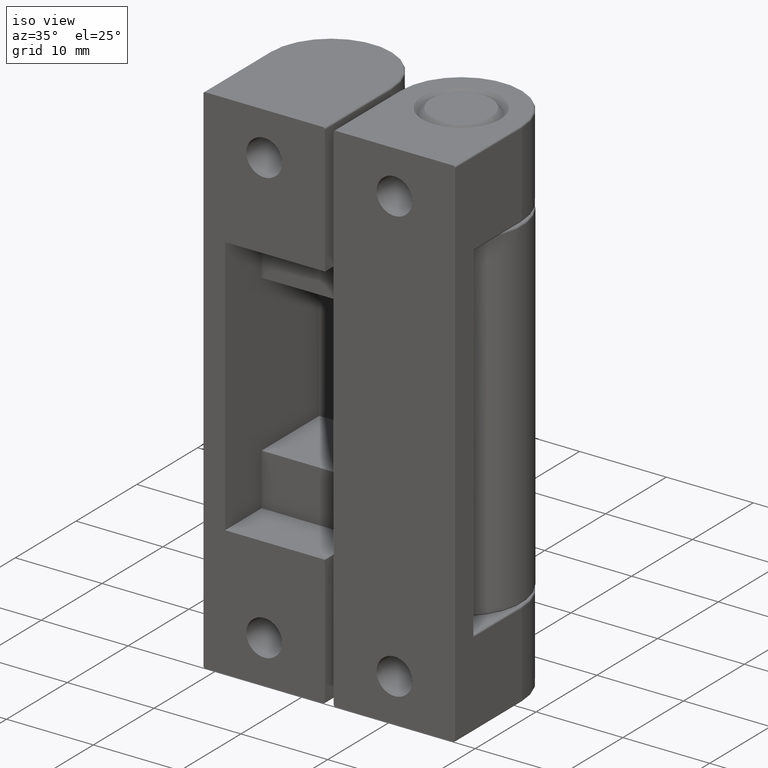
[diagram: clean part render]
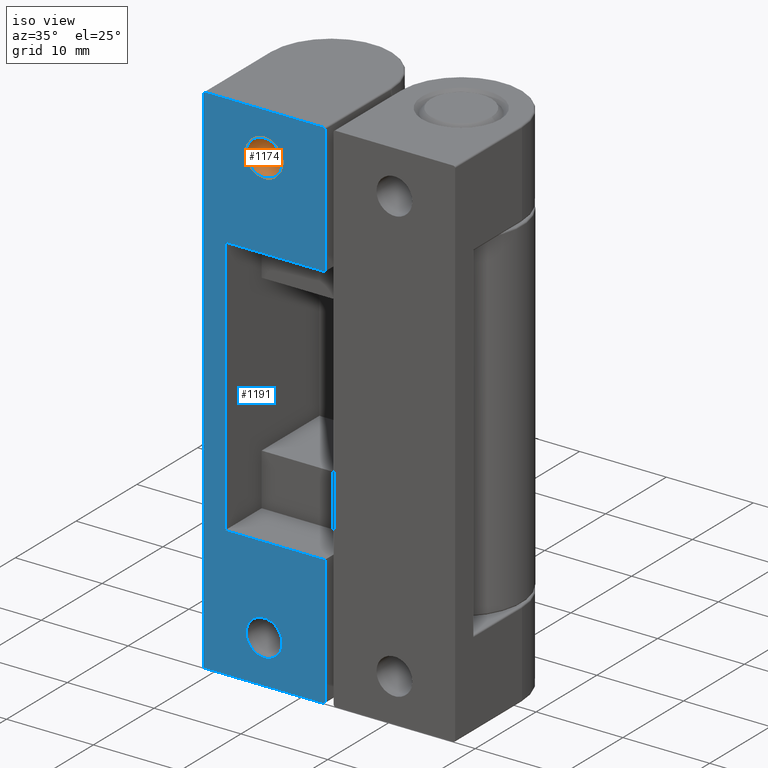
[diagram: same view with the hole feature highlighted: cylindrical wall and planar end face, labeled with their STEP entity ids]
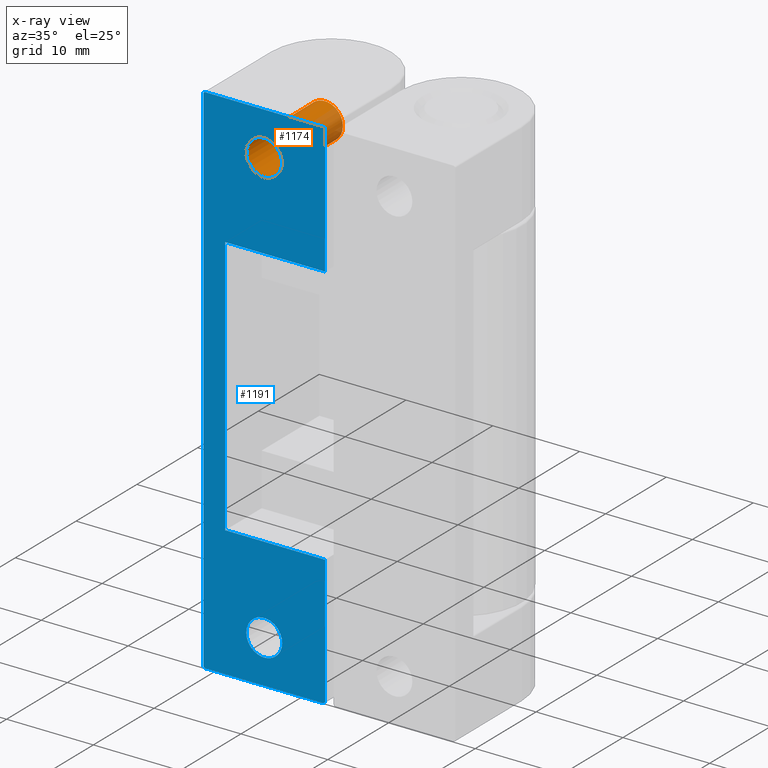
[diagram: x-ray of the same camera — body ghosted, the hole faces saturated]
A machine part, iso view. The highlighted faces form one hole feature of diameter 4.134 mm: the cylindrical wall (entity #1174, orange) and its adjacent planar end face (entity #1191, blue) — they share a circular edge in the B-rep.
The next image is the same camera in x-ray (body ghosted, the hole faces saturated) — the bore reads through the body.
Wall:
#35=FACE_BOUND('',#197,.T.);
#124=FACE_OUTER_BOUND('',#196,.T.);
#196=EDGE_LOOP('',(#893));
#197=EDGE_LOOP('',(#894));
#483=CIRCLE('',#1274,2.067);
#484=CIRCLE('',#1276,2.067);
#567=VERTEX_POINT('',#1888);
#568=VERTEX_POINT('',#1891);
#697=EDGE_CURVE('',#567,#567,#483,.T.);
#698=EDGE_CURVE('',#568,#568,#484,.T.);
#893=ORIENTED_EDGE('',*,*,#698,.F.);
#894=ORIENTED_EDGE('',*,*,#697,.F.);
#1136=CYLINDRICAL_SURFACE('',#1275,2.067);
#1174=ADVANCED_FACE('',(#124,#35),#1136,.F.);
#1274=AXIS2_PLACEMENT_3D('',#1889,#1500,#1501);
#1275=AXIS2_PLACEMENT_3D('',#1890,#1502,#1503);
#1276=AXIS2_PLACEMENT_3D('',#1892,#1504,#1505);
#1500=DIRECTION('center_axis',(3.1720657846433E-16,-1.,0.));
#1501=DIRECTION('ref_axis',(1.,3.1720657846433E-16,0.));
#1502=DIRECTION('center_axis',(3.1720657846433E-16,-1.,0.));
#1503=DIRECTION('ref_axis',(1.,3.1720657846433E-16,0.));
#1504=DIRECTION('center_axis',(-3.1720657846433E-16,1.,0.));
#1505=DIRECTION('ref_axis',(1.,3.1720657846433E-16,0.));
#1888=CARTESIAN_POINT('',(2.067,10.,-5.));
#1889=CARTESIAN_POINT('Origin',(-3.1720657846433E-15,10.,-5.));
#1890=CARTESIAN_POINT('Origin',(-1.58603289232165E-15,5.,-5.));
#1891=CARTESIAN_POINT('',(2.067,2.87611204693608E-15,-5.));
#1892=CARTESIAN_POINT('Origin',(0.,2.22044604925031E-15,-5.));
End face:
#41=FACE_BOUND('',#220,.T.);
#42=FACE_BOUND('',#221,.T.);
#84=PLANE('',#1299);
#141=FACE_OUTER_BOUND('',#219,.T.);
#219=EDGE_LOOP('',(#976,#977,#978,#979,#980,#981,#982,#983,#984,#985,#986,
#987));
#220=EDGE_LOOP('',(#988));
#221=EDGE_LOOP('',(#989));
#300=LINE('',#1852,#391);
#303=LINE('',#1864,#394);
#308=LINE('',#1884,#399);
#327=LINE('',#1938,#418);
#333=LINE('',#1948,#424);
#337=LINE('',#1954,#428);
#338=LINE('',#1964,#429);
#339=LINE('',#1966,#430);
#391=VECTOR('',#1459,14.8);
#394=VECTOR('',#1472,59.6);
#399=VECTOR('',#1495,14.8);
#418=VECTOR('',#1546,11.5);
#424=VECTOR('',#1556,30.);
#428=VECTOR('',#1562,11.5);
#429=VECTOR('',#1577,13.6);
#430=VECTOR('',#1580,13.6);
#469=CIRCLE('',#1250,0.2);
#474=CIRCLE('',#1257,0.2);
#478=CIRCLE('',#1265,0.2);
#482=CIRCLE('',#1271,0.2);
#484=CIRCLE('',#1276,2.067);
#486=CIRCLE('',#1280,2.067);
#547=VERTEX_POINT('',#1826);
#548=VERTEX_POINT('',#1827);
#553=VERTEX_POINT('',#1841);
#554=VERTEX_POINT('',#1842);
#556=VERTEX_POINT('',#1850);
#560=VERTEX_POINT('',#1863);
#561=VERTEX_POINT('',#1867);
#562=VERTEX_POINT('',#1868);
#565=VERTEX_POINT('',#1879);
#566=VERTEX_POINT('',#1883);
#568=VERTEX_POINT('',#1891);
#570=VERTEX_POINT('',#1897);
#585=VERTEX_POINT('',#1937);
#587=VERTEX_POINT('',#1947);
#665=EDGE_CURVE('',#547,#548,#469,.T.);
#672=EDGE_CURVE('',#553,#554,#474,.T.);
#678=EDGE_CURVE('',#556,#553,#300,.T.);
#684=EDGE_CURVE('',#560,#548,#303,.T.);
#686=EDGE_CURVE('',#561,#562,#478,.T.);
#692=EDGE_CURVE('',#560,#565,#482,.T.);
#694=EDGE_CURVE('',#562,#566,#308,.T.);
#698=EDGE_CURVE('',#568,#568,#484,.T.);
#700=EDGE_CURVE('',#570,#570,#486,.T.);
#719=EDGE_CURVE('',#585,#566,#327,.T.);
#725=EDGE_CURVE('',#587,#585,#333,.T.);
#729=EDGE_CURVE('',#556,#587,#337,.T.);
#732=EDGE_CURVE('',#565,#561,#338,.T.);
#733=EDGE_CURVE('',#554,#547,#339,.T.);
#976=ORIENTED_EDGE('',*,*,#672,.F.);
#977=ORIENTED_EDGE('',*,*,#678,.F.);
#978=ORIENTED_EDGE('',*,*,#729,.T.);
#979=ORIENTED_EDGE('',*,*,#725,.T.);
#980=ORIENTED_EDGE('',*,*,#719,.T.);
#981=ORIENTED_EDGE('',*,*,#694,.F.);
#982=ORIENTED_EDGE('',*,*,#686,.F.);
#983=ORIENTED_EDGE('',*,*,#732,.F.);
#984=ORIENTED_EDGE('',*,*,#692,.F.);
#985=ORIENTED_EDGE('',*,*,#684,.T.);
#986=ORIENTED_EDGE('',*,*,#665,.F.);
#987=ORIENTED_EDGE('',*,*,#733,.F.);
#988=ORIENTED_EDGE('',*,*,#698,.T.);
#989=ORIENTED_EDGE('',*,*,#700,.T.);
#1191=ADVANCED_FACE('',(#141,#41,#42),#84,.T.);
#1250=AXIS2_PLACEMENT_3D('',#1828,#1434,#1435);
#1257=AXIS2_PLACEMENT_3D('',#1843,#1450,#1451);
#1265=AXIS2_PLACEMENT_3D('',#1869,#1476,#1477);
#1271=AXIS2_PLACEMENT_3D('',#1880,#1490,#1491);
#1276=AXIS2_PLACEMENT_3D('',#1892,#1504,#1505);
#1280=AXIS2_PLACEMENT_3D('',#1898,#1512,#1513);
#1299=AXIS2_PLACEMENT_3D('',#1965,#1578,#1579);
#1434=DIRECTION('center_axis',(-3.1720657846433E-16,1.,0.));
#1435=DIRECTION('ref_axis',(-0.707106781186555,0.,-0.70710678118654));
#1450=DIRECTION('center_axis',(-3.1720657846433E-16,1.,0.));
#1451=DIRECTION('ref_axis',(0.707106781186555,0.,-0.70710678118654));
#1459=DIRECTION('',(0.,0.,-1.));
#1472=DIRECTION('',(0.,0.,-1.));
#1476=DIRECTION('center_axis',(-3.1720657846433E-16,1.,0.));
#1477=DIRECTION('ref_axis',(0.707106781186548,0.,0.707106781186547));
#1490=DIRECTION('center_axis',(-3.1720657846433E-16,1.,0.));
#1491=DIRECTION('ref_axis',(-0.707106781186548,0.,0.707106781186547));
#1495=DIRECTION('',(0.,0.,-1.));
#1504=DIRECTION('center_axis',(-3.1720657846433E-16,1.,0.));
#1505=DIRECTION('ref_axis',(1.,3.1720657846433E-16,0.));
#1512=DIRECTION('center_axis',(-3.1720657846433E-16,1.,0.));
#1513=DIRECTION('ref_axis',(1.,3.1720657846433E-16,0.));
#1546=DIRECTION('',(1.,3.1720657846433E-16,0.));
#1556=DIRECTION('',(0.,0.,1.));
#1562=DIRECTION('',(-1.,-3.1720657846433E-16,0.));
#1577=DIRECTION('',(1.,3.1720657846433E-16,0.));
#1578=DIRECTION('center_axis',(3.1720657846433E-16,-1.,0.));
#1579=DIRECTION('ref_axis',(-1.,-3.1720657846433E-16,0.));
#1580=DIRECTION('',(-1.,-3.1720657846433E-16,0.));
#1826=CARTESIAN_POINT('',(-6.8,6.34413156928661E-17,-60.));
#1827=CARTESIAN_POINT('',(-7.,0.,-59.8));
#1828=CARTESIAN_POINT('Origin',(-6.8,4.44089209850063E-15,-59.8));
#1841=CARTESIAN_POINT('',(7.,4.44089209850063E-15,-59.8));
#1842=CARTESIAN_POINT('',(6.8,4.37745078280776E-15,-60.));
#1843=CARTESIAN_POINT('Origin',(6.8,4.44089209850063E-15,-59.8));
#1850=CARTESIAN_POINT('',(7.,4.44089209850063E-15,-45.));
#1852=CARTESIAN_POINT('',(7.,4.44089209850063E-15,0.));
#1863=CARTESIAN_POINT('',(-7.,0.,-0.2));
#1864=CARTESIAN_POINT('',(-7.,0.,0.));
#1867=CARTESIAN_POINT('',(6.8,4.37745078280776E-15,0.));
#1868=CARTESIAN_POINT('',(7.,4.44089209850063E-15,-0.2));
#1869=CARTESIAN_POINT('Origin',(6.8,4.44089209850063E-15,-0.2));
#1879=CARTESIAN_POINT('',(-6.8,6.34413156928661E-17,0.));
#1880=CARTESIAN_POINT('Origin',(-6.8,4.44089209850063E-15,-0.2));
#1883=CARTESIAN_POINT('',(7.,4.44089209850063E-15,-15.));
#1884=CARTESIAN_POINT('',(7.,4.44089209850063E-15,0.));
#1891=CARTESIAN_POINT('',(2.067,2.87611204693608E-15,-5.));
#1892=CARTESIAN_POINT('Origin',(0.,2.22044604925031E-15,-5.));
#1897=CARTESIAN_POINT('',(2.067,2.87611204693608E-15,-55.));
#1898=CARTESIAN_POINT('Origin',(0.,2.22044604925031E-15,-55.));
#1937=CARTESIAN_POINT('',(-4.5,7.93016446160827E-16,-15.));
#1938=CARTESIAN_POINT('',(1.25,2.61695427233073E-15,-15.));
#1947=CARTESIAN_POINT('',(-4.5,7.93016446160827E-16,-45.));
#1948=CARTESIAN_POINT('',(-4.5,7.93016446160827E-16,-22.5));
#1954=CARTESIAN_POINT('',(9.75,5.31321018927754E-15,-45.));
#1964=CARTESIAN_POINT('',(-7.,0.,0.));
#1965=CARTESIAN_POINT('Origin',(7.,4.44089209850063E-15,0.));
#1966=CARTESIAN_POINT('',(-7.,0.,-60.));